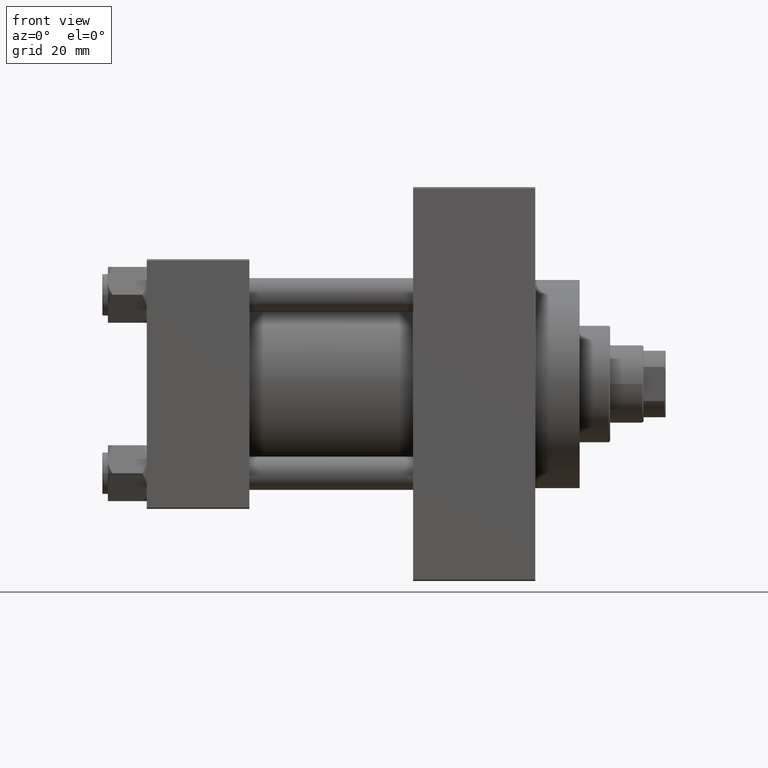
[diagram: clean part render]
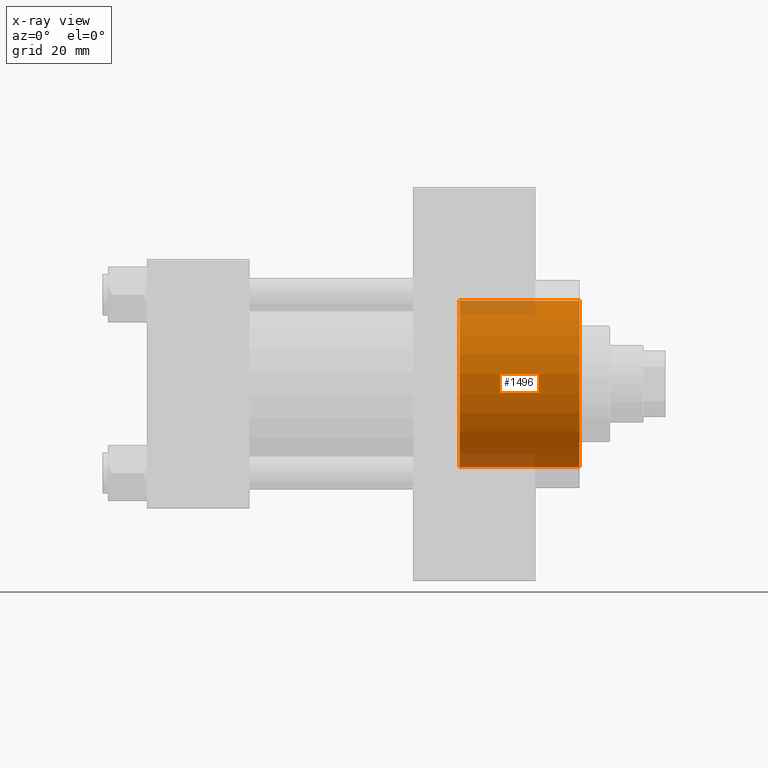
[diagram: x-ray — body ghosted, one internal face saturated and labeled with its STEP entity id]
A machine part, front view, then the same camera in x-ray: the body is ghosted and one INTERNAL B-rep face — a face not visible from any outside direction — is saturated and labeled: STEP entity #1496.
In plain terms, the highlighted cylindrical surface (partial cylindrical patch) has radius 30 mm, axis along (1, 0, 0).
Its self-contained STEP definition (entity closure, byte-faithful):
#212 = DIRECTION ( 'NONE',  ( 0.000000000000000000, 0.000000000000000000, -1.000000000000000000 ) ) ;
#1496 = ADVANCED_FACE ( 'NONE', ( #13802 ), #14032, .F. ) ;
#4929 = AXIS2_PLACEMENT_3D ( 'NONE', #44122, #7370, #212 ) ;
#5392 = DIRECTION ( 'NONE',  ( 0.000000000000000000, 0.000000000000000000, -1.000000000000000000 ) ) ;
#6968 = CARTESIAN_POINT ( 'NONE',  ( 156.0000000000000284, 0.000000000000000000, -30.00000000000000000 ) ) ;
#7370 = DIRECTION ( 'NONE',  ( 1.000000000000000000, 0.000000000000000000, 0.000000000000000000 ) ) ;
#8251 = DIRECTION ( 'NONE',  ( 1.000000000000000000, 0.000000000000000000, 0.000000000000000000 ) ) ;
#10449 = DIRECTION ( 'NONE',  ( 0.000000000000000000, 0.000000000000000000, -1.000000000000000000 ) ) ;
#11139 = VERTEX_POINT ( 'NONE', #6968 ) ;
#13802 = FACE_OUTER_BOUND ( 'NONE', #42401, .T. ) ;
#14032 = CYLINDRICAL_SURFACE ( 'NONE', #25854, 30.00000000000000000 ) ;
#15775 = VERTEX_POINT ( 'NONE', #19150 ) ;
#17591 = DIRECTION ( 'NONE',  ( 1.000000000000000000, -0.000000000000000000, -0.000000000000000000 ) ) ;
#19150 = CARTESIAN_POINT ( 'NONE',  ( 156.0000000000000284, 3.673940397442059178E-15, 30.00000000000000000 ) ) ;
#19648 = LINE ( 'NONE', #42104, #26157 ) ;
#20740 = AXIS2_PLACEMENT_3D ( 'NONE', #27115, #8251, #5392 ) ;
#21927 = EDGE_CURVE ( 'NONE', #15775, #11139, #33163, .T. ) ;
#22289 = CARTESIAN_POINT ( 'NONE',  ( 112.7400000000000375, 3.673940397442059178E-15, 30.00000000000000000 ) ) ;
#25381 = VECTOR ( 'NONE', #26293, 1000.000000000000000 ) ;
#25465 = EDGE_CURVE ( 'NONE', #25603, #28556, #28378, .T. ) ;
#25603 = VERTEX_POINT ( 'NONE', #22289 ) ;
#25854 = AXIS2_PLACEMENT_3D ( 'NONE', #39355, #17591, #10449 ) ;
#26157 = VECTOR ( 'NONE', #31130, 1000.000000000000000 ) ;
#26293 = DIRECTION ( 'NONE',  ( 1.000000000000000000, -0.000000000000000000, -0.000000000000000000 ) ) ;
#27115 = CARTESIAN_POINT ( 'NONE',  ( 112.7400000000000375, 0.000000000000000000, 0.000000000000000000 ) ) ;
#28378 = CIRCLE ( 'NONE', #20740, 30.00000000000000000 ) ;
#28556 = VERTEX_POINT ( 'NONE', #41368 ) ;
#28715 = ORIENTED_EDGE ( 'NONE', *, *, #21927, .T. ) ;
#31087 = LINE ( 'NONE', #45646, #25381 ) ;
#31130 = DIRECTION ( 'NONE',  ( 1.000000000000000000, -0.000000000000000000, -0.000000000000000000 ) ) ;
#33163 = CIRCLE ( 'NONE', #4929, 30.00000000000000000 ) ;
#39355 = CARTESIAN_POINT ( 'NONE',  ( 112.7400000000000375, 0.000000000000000000, 0.000000000000000000 ) ) ;
#40948 = ORIENTED_EDGE ( 'NONE', *, *, #25465, .F. ) ;
#41085 = EDGE_CURVE ( 'NONE', #25603, #15775, #31087, .T. ) ;
#41368 = CARTESIAN_POINT ( 'NONE',  ( 112.7400000000000375, 0.000000000000000000, -30.00000000000000000 ) ) ;
#42104 = CARTESIAN_POINT ( 'NONE',  ( 112.7400000000000375, 0.000000000000000000, -30.00000000000000000 ) ) ;
#42401 = EDGE_LOOP ( 'NONE', ( #40948, #43810, #28715, #43407 ) ) ;
#43085 = EDGE_CURVE ( 'NONE', #28556, #11139, #19648, .T. ) ;
#43407 = ORIENTED_EDGE ( 'NONE', *, *, #43085, .F. ) ;
#43810 = ORIENTED_EDGE ( 'NONE', *, *, #41085, .T. ) ;
#44122 = CARTESIAN_POINT ( 'NONE',  ( 156.0000000000000284, 0.000000000000000000, 0.000000000000000000 ) ) ;
#45646 = CARTESIAN_POINT ( 'NONE',  ( 112.7400000000000375, 3.673940397442059178E-15, 30.00000000000000000 ) ) ;